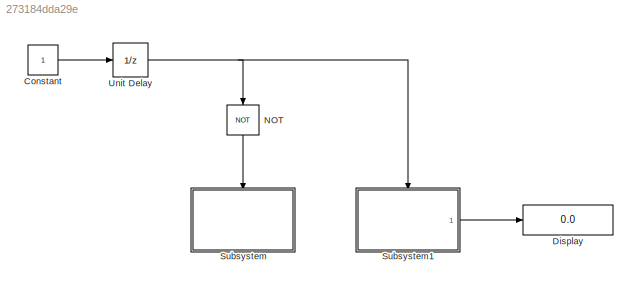
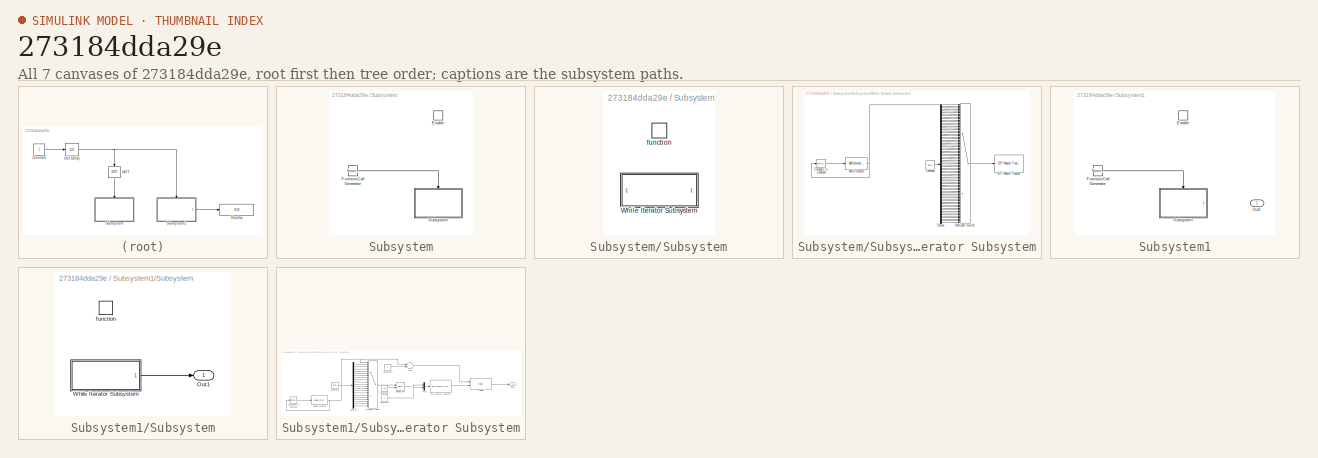
[diagram: thumbnail index - all 7 canvases of the model, root first then tree order]
MODEL slx_273184dda29e
KIND model
CONFIG AbsTol = auto
CONFIG EnableMultiTasking = on
CONFIG FixedStep = 0.01
CONFIG MaxStep = auto
CONFIG MinStep = auto
CONFIG RelTol = 1e-3
CONFIG SampleTimeConstraint = Unconstrained
CONFIG Solver = FixedStepAuto
CONFIG SolverName = FixedStepAuto
CONFIG StartTime = 0.0
CONFIG StopTime = 10.0
BLOCK [Constant] Constant
  SampleTime = -1
BLOCK [Display] Display
  Decimation = 1
  Ports = [1]
BLOCK [Logic] NOT
  AllPortsSameDT = off
  Operator = NOT
  OutDataTypeStr = boolean
  Ports = [1, 1]
BLOCK [SubSystem] Subsystem
  Ports = [0, 0, 1]
  RequestExecContextInheritance = off
BLOCK [EnablePort] Subsystem/Enable
  Ports = []
BLOCK [Reference] Subsystem/Function-Call Generator  REF=simulink/Ports &
Subsystems/Function-Call
Generator
  Ports = [0, 1]
  SourceBlock = simulink/Ports &\nSubsystems/Function-Call\nGenerator
  SourceProductBaseCode = SL
  SourceProductName = Simulink
  SourceType = Function-Call Generator
BLOCK [SubSystem] Subsystem/Subsystem
  Ports = [0, 0, 0, 1]
  RequestExecContextInheritance = off
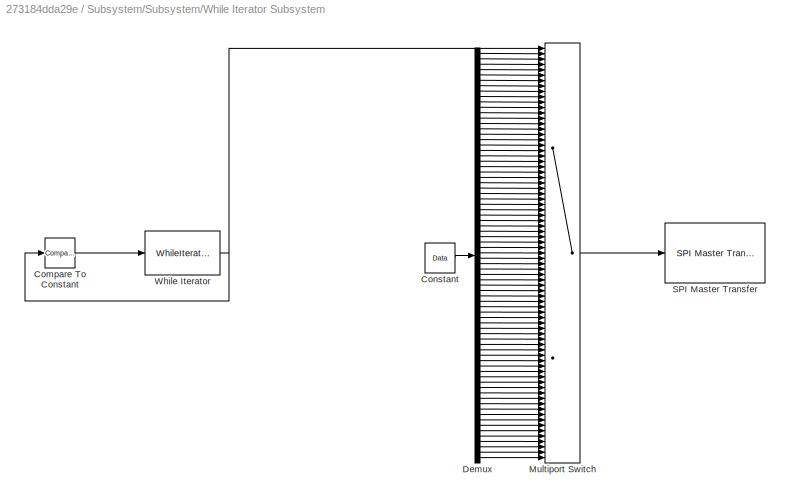
BLOCK [SubSystem] Subsystem/Subsystem/While Iterator Subsystem
  Ports = []
  RequestExecContextInheritance = off
  TreatAsAtomicUnit = on
BLOCK [Reference] Subsystem/Subsystem/While Iterator Subsystem/Compare To Constant  REF=simulink/Logic and Bit
Operations/Compare
To Constant
  Ports = [1, 1]
  SourceBlock = simulink/Logic and Bit\nOperations/Compare\nTo Constant
  SourceProductBaseCode = SL
  SourceProductName = Simulink
  SourceType = Compare To Constant
BLOCK [Constant] Subsystem/Subsystem/While Iterator Subsystem/Constant
  Value = Data
BLOCK [Demux] Subsystem/Subsystem/While Iterator Subsystem/Demux
  DisplayOption = bar
  Outputs = 76
  Ports = [1, 76]
BLOCK [MultiPortSwitch] Subsystem/Subsystem/While Iterator Subsystem/Multiport Switch
  InputSameDT = off
  Inputs = 76
  Ports = [77, 1]
  SaturateOnIntegerOverflow = off
BLOCK [Reference] Subsystem/Subsystem/While Iterator Subsystem/SPI Master Transfer  REF=mbedblockslib/SPI Master Transfer
  Ports = [1, 1]
  SourceBlock = mbedblockslib/SPI Master Transfer
  SourceProductBaseCode = MICROBIT
  SourceProductName = Simulink Coder Support Package for BBC microbit Board
  SourceType = mbed.SPIMasterTransfer
BLOCK [WhileIterator] Subsystem/Subsystem/While Iterator Subsystem/While Iterator
  MaxIters = 84
  Ports = [1, 1]
  ShowIterationPort = on
  WhileBlockType = do-while
BLOCK [TriggerPort] Subsystem/Subsystem/function
  Ports = []
  StatesWhenEnabling = held
  TriggerType = function-call
  VariantControl = Variant
BLOCK [SubSystem] Subsystem1
  Ports = [0, 1, 1]
  RequestExecContextInheritance = off
BLOCK [EnablePort] Subsystem1/Enable
  Ports = []
BLOCK [Reference] Subsystem1/Function-Call Generator  REF=simulink/Ports &
Subsystems/Function-Call
Generator
  Ports = [0, 1]
  SourceBlock = simulink/Ports &\nSubsystems/Function-Call\nGenerator
  SourceProductBaseCode = SL
  SourceProductName = Simulink
  SourceType = Function-Call Generator
BLOCK [Outport] Subsystem1/Out1
  IconDisplay = Port number
BLOCK [SubSystem] Subsystem1/Subsystem
  Ports = [0, 1, 0, 1]
  RequestExecContextInheritance = off
BLOCK [Outport] Subsystem1/Subsystem/Out1
  IconDisplay = Port number
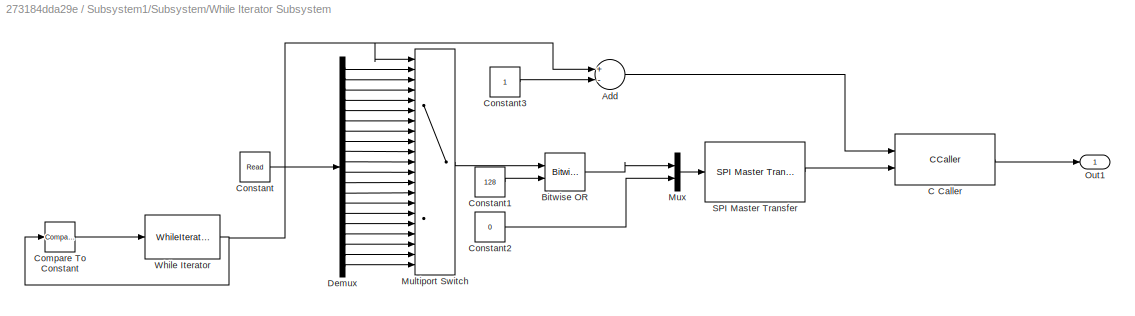
BLOCK [SubSystem] Subsystem1/Subsystem/While Iterator Subsystem
  Ports = [0, 1]
  RequestExecContextInheritance = off
  TreatAsAtomicUnit = on
BLOCK [Sum] Subsystem1/Subsystem/While Iterator Subsystem/Add
  InputSameDT = off
  Inputs = +-
  OutDataTypeStr = Inherit: Inherit via internal rule
  Ports = [2, 1]
  SaturateOnIntegerOverflow = off
BLOCK [Reference] Subsystem1/Subsystem/While Iterator Subsystem/Bitwise OR  REF=simulink/Logic and Bit
Operations/Bitwise
Operator
  Ports = [2, 1]
  SourceBlock = simulink/Logic and Bit\nOperations/Bitwise\nOperator
  SourceProductBaseCode = SL
  SourceProductName = Simulink
  SourceType = Bitwise Operator
BLOCK [CCaller] Subsystem1/Subsystem/While Iterator Subsystem/C Caller
  FunctionName = storeIt
  PortSpecificationStruct = %)30     .    R 0   8    (     @         %    "     ,    !     0         %  0 "0    $    V    07)G3F%M90  4&]R=$YA;64 4V-O<&4     26YD97@     5'EP90      4VEZ90         .    ,     8    (    !          %    "     $    #     0         0  , ;W5T  X    P    !@    @    $          4    (     0    ,    !         !   P!O=70 #@   #@    &    "     0         !0    @    !    !@    $         $     8   !/=71P=7...<+1248ch>
  Ports = [2, 1]
BLOCK [Reference] Subsystem1/Subsystem/While Iterator Subsystem/Compare To Constant  REF=simulink/Logic and Bit
Operations/Compare
To Constant
  Ports = [1, 1]
  SourceBlock = simulink/Logic and Bit\nOperations/Compare\nTo Constant
  SourceProductBaseCode = SL
  SourceProductName = Simulink
  SourceType = Compare To Constant
BLOCK [Constant] Subsystem1/Subsystem/While Iterator Subsystem/Constant
  Value = Read
BLOCK [Constant] Subsystem1/Subsystem/While Iterator Subsystem/Constant1
  OutDataTypeStr = uint8
  Value = 128
BLOCK [Constant] Subsystem1/Subsystem/While Iterator Subsystem/Constant2
  OutDataTypeStr = uint8
  Value = 0
BLOCK [Constant] Subsystem1/Subsystem/While Iterator Subsystem/Constant3
  OutDataTypeStr = uint8
BLOCK [Demux] Subsystem1/Subsystem/While Iterator Subsystem/Demux
  DisplayOption = bar
  Outputs = 20
  Ports = [1, 20]
BLOCK [MultiPortSwitch] Subsystem1/Subsystem/While Iterator Subsystem/Multiport Switch
  InputSameDT = off
  Inputs = 20
  Ports = [21, 1]
  SaturateOnIntegerOverflow = off
BLOCK [Mux] Subsystem1/Subsystem/While Iterator Subsystem/Mux
  DisplayOption = bar
  Inputs = 2
  Ports = [2, 1]
BLOCK [Outport] Subsystem1/Subsystem/While Iterator Subsystem/Out1
  IconDisplay = Port number
BLOCK [Reference] Subsystem1/Subsystem/While Iterator Subsystem/SPI Master Transfer  REF=mbedblockslib/SPI Master Transfer
  Ports = [1, 1]
  SourceBlock = mbedblockslib/SPI Master Transfer
  SourceProductBaseCode = MICROBIT
  SourceProductName = Simulink Coder Support Package for BBC microbit Board
  SourceType = mbed.SPIMasterTransfer
BLOCK [WhileIterator] Subsystem1/Subsystem/While Iterator Subsystem/While Iterator
  MaxIters = 84
  Ports = [1, 1]
  ShowIterationPort = on
  WhileBlockType = do-while
BLOCK [TriggerPort] Subsystem1/Subsystem/function
  Ports = []
  StatesWhenEnabling = held
  TriggerType = function-call
  VariantControl = Variant
BLOCK [UnitDelay] Unit Delay
  InputProcessing = Elements as channels (sample based)
  SampleTime = -1
LINE Constant:1 -> Unit Delay:1
LINE NOT:1 -> Subsystem:enable
LINE Subsystem/Function-Call Generator:1 -> Subsystem/Subsystem:trigger
LINE Subsystem/Subsystem/While Iterator Subsystem/Compare To Constant:1 -> Subsystem/Subsystem/While Iterator Subsystem/While Iterator:1
LINE Subsystem/Subsystem/While Iterator Subsystem/Constant:1 -> Subsystem/Subsystem/While Iterator Subsystem/Demux:1
LINE Subsystem/Subsystem/While Iterator Subsystem/Demux:1 -> Subsystem/Subsystem/While Iterator Subsystem/Multiport Switch:2
LINE Subsystem/Subsystem/While Iterator Subsystem/Demux:10 -> Subsystem/Subsystem/While Iterator Subsystem/Multiport Switch:11
LINE Subsystem/Subsystem/While Iterator Subsystem/Demux:11 -> Subsystem/Subsystem/While Iterator Subsystem/Multiport Switch:12
LINE Subsystem/Subsystem/While Iterator Subsystem/Demux:12 -> Subsystem/Subsystem/While Iterator Subsystem/Multiport Switch:13
LINE Subsystem/Subsystem/While Iterator Subsystem/Demux:13 -> Subsystem/Subsystem/While Iterator Subsystem/Multiport Switch:14
LINE Subsystem/Subsystem/While Iterator Subsystem/Demux:14 -> Subsystem/Subsystem/While Iterator Subsystem/Multiport Switch:15
LINE Subsystem/Subsystem/While Iterator Subsystem/Demux:15 -> Subsystem/Subsystem/While Iterator Subsystem/Multiport Switch:16
LINE Subsystem/Subsystem/While Iterator Subsystem/Demux:16 -> Subsystem/Subsystem/While Iterator Subsystem/Multiport Switch:17
LINE Subsystem/Subsystem/While Iterator Subsystem/Demux:17 -> Subsystem/Subsystem/While Iterator Subsystem/Multiport Switch:18
LINE Subsystem/Subsystem/While Iterator Subsystem/Demux:18 -> Subsystem/Subsystem/While Iterator Subsystem/Multiport Switch:19
LINE Subsystem/Subsystem/While Iterator Subsystem/Demux:19 -> Subsystem/Subsystem/While Iterator Subsystem/Multiport Switch:20
LINE Subsystem/Subsystem/While Iterator Subsystem/Demux:2 -> Subsystem/Subsystem/While Iterator Subsystem/Multiport Switch:3
LINE Subsystem/Subsystem/While Iterator Subsystem/Demux:20 -> Subsystem/Subsystem/While Iterator Subsystem/Multiport Switch:21
LINE Subsystem/Subsystem/While Iterator Subsystem/Demux:21 -> Subsystem/Subsystem/While Iterator Subsystem/Multiport Switch:22
LINE Subsystem/Subsystem/While Iterator Subsystem/Demux:22 -> Subsystem/Subsystem/While Iterator Subsystem/Multiport Switch:23
LINE Subsystem/Subsystem/While Iterator Subsystem/Demux:23 -> Subsystem/Subsystem/While Iterator Subsystem/Multiport Switch:24
LINE Subsystem/Subsystem/While Iterator Subsystem/Demux:24 -> Subsystem/Subsystem/While Iterator Subsystem/Multiport Switch:25
LINE Subsystem/Subsystem/While Iterator Subsystem/Demux:25 -> Subsystem/Subsystem/While Iterator Subsystem/Multiport Switch:26
LINE Subsystem/Subsystem/While Iterator Subsystem/Demux:26 -> Subsystem/Subsystem/While Iterator Subsystem/Multiport Switch:27
LINE Subsystem/Subsystem/While Iterator Subsystem/Demux:27 -> Subsystem/Subsystem/While Iterator Subsystem/Multiport Switch:28
LINE Subsystem/Subsystem/While Iterator Subsystem/Demux:28 -> Subsystem/Subsystem/While Iterator Subsystem/Multiport Switch:29
LINE Subsystem/Subsystem/While Iterator Subsystem/Demux:29 -> Subsystem/Subsystem/While Iterator Subsystem/Multiport Switch:30
LINE Subsystem/Subsystem/While Iterator Subsystem/Demux:3 -> Subsystem/Subsystem/While Iterator Subsystem/Multiport Switch:4
LINE Subsystem/Subsystem/While Iterator Subsystem/Demux:30 -> Subsystem/Subsystem/While Iterator Subsystem/Multiport Switch:31
LINE Subsystem/Subsystem/While Iterator Subsystem/Demux:31 -> Subsystem/Subsystem/While Iterator Subsystem/Multiport Switch:32
LINE Subsystem/Subsystem/While Iterator Subsystem/Demux:32 -> Subsystem/Subsystem/While Iterator Subsystem/Multiport Switch:33
LINE Subsystem/Subsystem/While Iterator Subsystem/Demux:33 -> Subsystem/Subsystem/While Iterator Subsystem/Multiport Switch:34
LINE Subsystem/Subsystem/While Iterator Subsystem/Demux:34 -> Subsystem/Subsystem/While Iterator Subsystem/Multiport Switch:35
LINE Subsystem/Subsystem/While Iterator Subsystem/Demux:35 -> Subsystem/Subsystem/While Iterator Subsystem/Multiport Switch:36
LINE Subsystem/Subsystem/While Iterator Subsystem/Demux:36 -> Subsystem/Subsystem/While Iterator Subsystem/Multiport Switch:37
LINE Subsystem/Subsystem/While Iterator Subsystem/Demux:37 -> Subsystem/Subsystem/While Iterator Subsystem/Multiport Switch:38
LINE Subsystem/Subsystem/While Iterator Subsystem/Demux:38 -> Subsystem/Subsystem/While Iterator Subsystem/Multiport Switch:39
LINE Subsystem/Subsystem/While Iterator Subsystem/Demux:39 -> Subsystem/Subsystem/While Iterator Subsystem/Multiport Switch:40
LINE Subsystem/Subsystem/While Iterator Subsystem/Demux:4 -> Subsystem/Subsystem/While Iterator Subsystem/Multiport Switch:5
LINE Subsystem/Subsystem/While Iterator Subsystem/Demux:40 -> Subsystem/Subsystem/While Iterator Subsystem/Multiport Switch:41
LINE Subsystem/Subsystem/While Iterator Subsystem/Demux:41 -> Subsystem/Subsystem/While Iterator Subsystem/Multiport Switch:42
LINE Subsystem/Subsystem/While Iterator Subsystem/Demux:42 -> Subsystem/Subsystem/While Iterator Subsystem/Multiport Switch:43
LINE Subsystem/Subsystem/While Iterator Subsystem/Demux:43 -> Subsystem/Subsystem/While Iterator Subsystem/Multiport Switch:44
LINE Subsystem/Subsystem/While Iterator Subsystem/Demux:44 -> Subsystem/Subsystem/While Iterator Subsystem/Multiport Switch:45
LINE Subsystem/Subsystem/While Iterator Subsystem/Demux:45 -> Subsystem/Subsystem/While Iterator Subsystem/Multiport Switch:46
LINE Subsystem/Subsystem/While Iterator Subsystem/Demux:46 -> Subsystem/Subsystem/While Iterator Subsystem/Multiport Switch:47
LINE Subsystem/Subsystem/While Iterator Subsystem/Demux:47 -> Subsystem/Subsystem/While Iterator Subsystem/Multiport Switch:48
LINE Subsystem/Subsystem/While Iterator Subsystem/Demux:48 -> Subsystem/Subsystem/While Iterator Subsystem/Multiport Switch:49
LINE Subsystem/Subsystem/While Iterator Subsystem/Demux:49 -> Subsystem/Subsystem/While Iterator Subsystem/Multiport Switch:50
LINE Subsystem/Subsystem/While Iterator Subsystem/Demux:5 -> Subsystem/Subsystem/While Iterator Subsystem/Multiport Switch:6
LINE Subsystem/Subsystem/While Iterator Subsystem/Demux:50 -> Subsystem/Subsystem/While Iterator Subsystem/Multiport Switch:51
LINE Subsystem/Subsystem/While Iterator Subsystem/Demux:51 -> Subsystem/Subsystem/While Iterator Subsystem/Multiport Switch:52
LINE Subsystem/Subsystem/While Iterator Subsystem/Demux:52 -> Subsystem/Subsystem/While Iterator Subsystem/Multiport Switch:53
LINE Subsystem/Subsystem/While Iterator Subsystem/Demux:53 -> Subsystem/Subsystem/While Iterator Subsystem/Multiport Switch:54
LINE Subsystem/Subsystem/While Iterator Subsystem/Demux:54 -> Subsystem/Subsystem/While Iterator Subsystem/Multiport Switch:55
LINE Subsystem/Subsystem/While Iterator Subsystem/Demux:55 -> Subsystem/Subsystem/While Iterator Subsystem/Multiport Switch:56
LINE Subsystem/Subsystem/While Iterator Subsystem/Demux:56 -> Subsystem/Subsystem/While Iterator Subsystem/Multiport Switch:57
LINE Subsystem/Subsystem/While Iterator Subsystem/Demux:57 -> Subsystem/Subsystem/While Iterator Subsystem/Multiport Switch:58
LINE Subsystem/Subsystem/While Iterator Subsystem/Demux:58 -> Subsystem/Subsystem/While Iterator Subsystem/Multiport Switch:59
LINE Subsystem/Subsystem/While Iterator Subsystem/Demux:59 -> Subsystem/Subsystem/While Iterator Subsystem/Multiport Switch:60
LINE Subsystem/Subsystem/While Iterator Subsystem/Demux:6 -> Subsystem/Subsystem/While Iterator Subsystem/Multiport Switch:7
LINE Subsystem/Subsystem/While Iterator Subsystem/Demux:60 -> Subsystem/Subsystem/While Iterator Subsystem/Multiport Switch:61
LINE Subsystem/Subsystem/While Iterator Subsystem/Demux:61 -> Subsystem/Subsystem/While Iterator Subsystem/Multiport Switch:62
LINE Subsystem/Subsystem/While Iterator Subsystem/Demux:62 -> Subsystem/Subsystem/While Iterator Subsystem/Multiport Switch:63
LINE Subsystem/Subsystem/While Iterator Subsystem/Demux:63 -> Subsystem/Subsystem/While Iterator Subsystem/Multiport Switch:64
LINE Subsystem/Subsystem/While Iterator Subsystem/Demux:64 -> Subsystem/Subsystem/While Iterator Subsystem/Multiport Switch:65
LINE Subsystem/Subsystem/While Iterator Subsystem/Demux:65 -> Subsystem/Subsystem/While Iterator Subsystem/Multiport Switch:66
LINE Subsystem/Subsystem/While Iterator Subsystem/Demux:66 -> Subsystem/Subsystem/While Iterator Subsystem/Multiport Switch:67
LINE Subsystem/Subsystem/While Iterator Subsystem/Demux:67 -> Subsystem/Subsystem/While Iterator Subsystem/Multiport Switch:68
LINE Subsystem/Subsystem/While Iterator Subsystem/Demux:68 -> Subsystem/Subsystem/While Iterator Subsystem/Multiport Switch:69
LINE Subsystem/Subsystem/While Iterator Subsystem/Demux:69 -> Subsystem/Subsystem/While Iterator Subsystem/Multiport Switch:70
LINE Subsystem/Subsystem/While Iterator Subsystem/Demux:7 -> Subsystem/Subsystem/While Iterator Subsystem/Multiport Switch:8
LINE Subsystem/Subsystem/While Iterator Subsystem/Demux:70 -> Subsystem/Subsystem/While Iterator Subsystem/Multiport Switch:71
LINE Subsystem/Subsystem/While Iterator Subsystem/Demux:71 -> Subsystem/Subsystem/While Iterator Subsystem/Multiport Switch:72
LINE Subsystem/Subsystem/While Iterator Subsystem/Demux:72 -> Subsystem/Subsystem/While Iterator Subsystem/Multiport Switch:73
LINE Subsystem/Subsystem/While Iterator Subsystem/Demux:73 -> Subsystem/Subsystem/While Iterator Subsystem/Multiport Switch:74
LINE Subsystem/Subsystem/While Iterator Subsystem/Demux:74 -> Subsystem/Subsystem/While Iterator Subsystem/Multiport Switch:75
LINE Subsystem/Subsystem/While Iterator Subsystem/Demux:75 -> Subsystem/Subsystem/While Iterator Subsystem/Multiport Switch:76
LINE Subsystem/Subsystem/While Iterator Subsystem/Demux:76 -> Subsystem/Subsystem/While Iterator Subsystem/Multiport Switch:77
LINE Subsystem/Subsystem/While Iterator Subsystem/Demux:8 -> Subsystem/Subsystem/While Iterator Subsystem/Multiport Switch:9
LINE Subsystem/Subsystem/While Iterator Subsystem/Demux:9 -> Subsystem/Subsystem/While Iterator Subsystem/Multiport Switch:10
LINE Subsystem/Subsystem/While Iterator Subsystem/Multiport Switch:1 -> Subsystem/Subsystem/While Iterator Subsystem/SPI Master Transfer:1
NET Subsystem/Subsystem/While Iterator Subsystem/While Iterator:1 -> Subsystem/Subsystem/While Iterator Subsystem/Compare To Constant:1, Subsystem/Subsystem/While Iterator Subsystem/Multiport Switch:1
LINE Subsystem1/Function-Call Generator:1 -> Subsystem1/Subsystem:trigger
LINE Subsystem1/Subsystem/While Iterator Subsystem/Add:1 -> Subsystem1/Subsystem/While Iterator Subsystem/C Caller:1
LINE Subsystem1/Subsystem/While Iterator Subsystem/Bitwise OR:1 -> Subsystem1/Subsystem/While Iterator Subsystem/Mux:1
LINE Subsystem1/Subsystem/While Iterator Subsystem/C Caller:1 -> Subsystem1/Subsystem/While Iterator Subsystem/Out1:1
LINE Subsystem1/Subsystem/While Iterator Subsystem/Compare To Constant:1 -> Subsystem1/Subsystem/While Iterator Subsystem/While Iterator:1
LINE Subsystem1/Subsystem/While Iterator Subsystem/Constant1:1 -> Subsystem1/Subsystem/While Iterator Subsystem/Bitwise OR:2
LINE Subsystem1/Subsystem/While Iterator Subsystem/Constant2:1 -> Subsystem1/Subsystem/While Iterator Subsystem/Mux:2
LINE Subsystem1/Subsystem/While Iterator Subsystem/Constant3:1 -> Subsystem1/Subsystem/While Iterator Subsystem/Add:2
LINE Subsystem1/Subsystem/While Iterator Subsystem/Constant:1 -> Subsystem1/Subsystem/While Iterator Subsystem/Demux:1
LINE Subsystem1/Subsystem/While Iterator Subsystem/Demux:1 -> Subsystem1/Subsystem/While Iterator Subsystem/Multiport Switch:2
LINE Subsystem1/Subsystem/While Iterator Subsystem/Demux:10 -> Subsystem1/Subsystem/While Iterator Subsystem/Multiport Switch:11
LINE Subsystem1/Subsystem/While Iterator Subsystem/Demux:11 -> Subsystem1/Subsystem/While Iterator Subsystem/Multiport Switch:12
LINE Subsystem1/Subsystem/While Iterator Subsystem/Demux:12 -> Subsystem1/Subsystem/While Iterator Subsystem/Multiport Switch:13
LINE Subsystem1/Subsystem/While Iterator Subsystem/Demux:13 -> Subsystem1/Subsystem/While Iterator Subsystem/Multiport Switch:14
LINE Subsystem1/Subsystem/While Iterator Subsystem/Demux:14 -> Subsystem1/Subsystem/While Iterator Subsystem/Multiport Switch:15
LINE Subsystem1/Subsystem/While Iterator Subsystem/Demux:15 -> Subsystem1/Subsystem/While Iterator Subsystem/Multiport Switch:16
LINE Subsystem1/Subsystem/While Iterator Subsystem/Demux:16 -> Subsystem1/Subsystem/While Iterator Subsystem/Multiport Switch:17
LINE Subsystem1/Subsystem/While Iterator Subsystem/Demux:17 -> Subsystem1/Subsystem/While Iterator Subsystem/Multiport Switch:18
LINE Subsystem1/Subsystem/While Iterator Subsystem/Demux:18 -> Subsystem1/Subsystem/While Iterator Subsystem/Multiport Switch:19
LINE Subsystem1/Subsystem/While Iterator Subsystem/Demux:19 -> Subsystem1/Subsystem/While Iterator Subsystem/Multiport Switch:20
LINE Subsystem1/Subsystem/While Iterator Subsystem/Demux:2 -> Subsystem1/Subsystem/While Iterator Subsystem/Multiport Switch:3
LINE Subsystem1/Subsystem/While Iterator Subsystem/Demux:20 -> Subsystem1/Subsystem/While Iterator Subsystem/Multiport Switch:21
LINE Subsystem1/Subsystem/While Iterator Subsystem/Demux:3 -> Subsystem1/Subsystem/While Iterator Subsystem/Multiport Switch:4
LINE Subsystem1/Subsystem/While Iterator Subsystem/Demux:4 -> Subsystem1/Subsystem/While Iterator Subsystem/Multiport Switch:5
LINE Subsystem1/Subsystem/While Iterator Subsystem/Demux:5 -> Subsystem1/Subsystem/While Iterator Subsystem/Multiport Switch:6
LINE Subsystem1/Subsystem/While Iterator Subsystem/Demux:6 -> Subsystem1/Subsystem/While Iterator Subsystem/Multiport Switch:7
LINE Subsystem1/Subsystem/While Iterator Subsystem/Demux:7 -> Subsystem1/Subsystem/While Iterator Subsystem/Multiport Switch:8
LINE Subsystem1/Subsystem/While Iterator Subsystem/Demux:8 -> Subsystem1/Subsystem/While Iterator Subsystem/Multiport Switch:9
LINE Subsystem1/Subsystem/While Iterator Subsystem/Demux:9 -> Subsystem1/Subsystem/While Iterator Subsystem/Multiport Switch:10
LINE Subsystem1/Subsystem/While Iterator Subsystem/Multiport Switch:1 -> Subsystem1/Subsystem/While Iterator Subsystem/Bitwise OR:1
LINE Subsystem1/Subsystem/While Iterator Subsystem/Mux:1 -> Subsystem1/Subsystem/While Iterator Subsystem/SPI Master Transfer:1
LINE Subsystem1/Subsystem/While Iterator Subsystem/SPI Master Transfer:1 -> Subsystem1/Subsystem/While Iterator Subsystem/C Caller:2
NET Subsystem1/Subsystem/While Iterator Subsystem/While Iterator:1 -> Subsystem1/Subsystem/While Iterator Subsystem/Add:1, Subsystem1/Subsystem/While Iterator Subsystem/Compare To Constant:1, Subsystem1/Subsystem/While Iterator Subsystem/Multiport Switch:1
LINE Subsystem1/Subsystem/While Iterator Subsystem:1 -> Subsystem1/Subsystem/Out1:1
LINE Subsystem1:1 -> Display:1
NET Unit Delay:1 -> NOT:1, Subsystem1:enable
note: NET lines group one-source signal fan-out (src -> all destinations, sorted); 1:1 wires keep LINE
